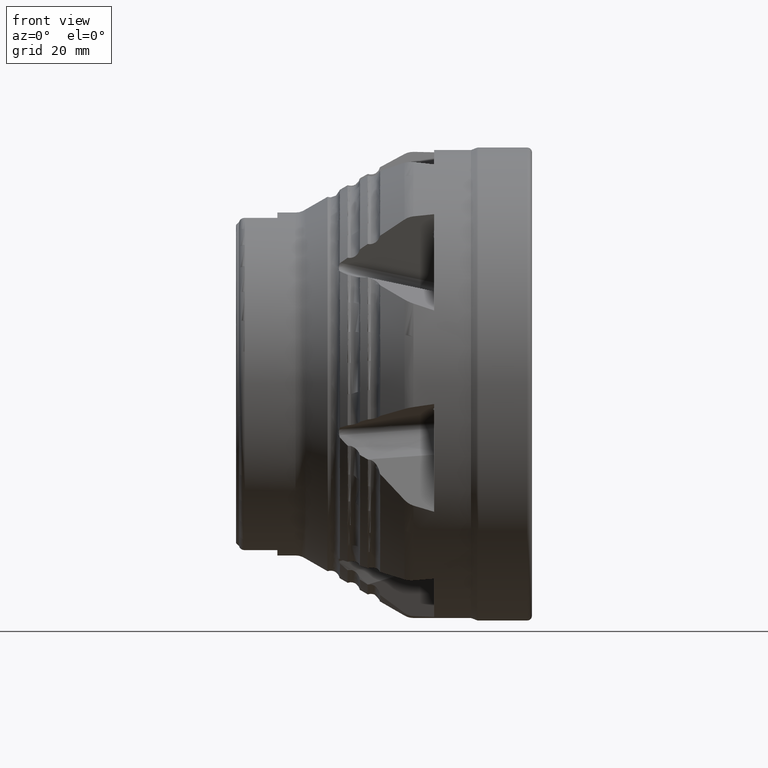
[diagram: clean part render]
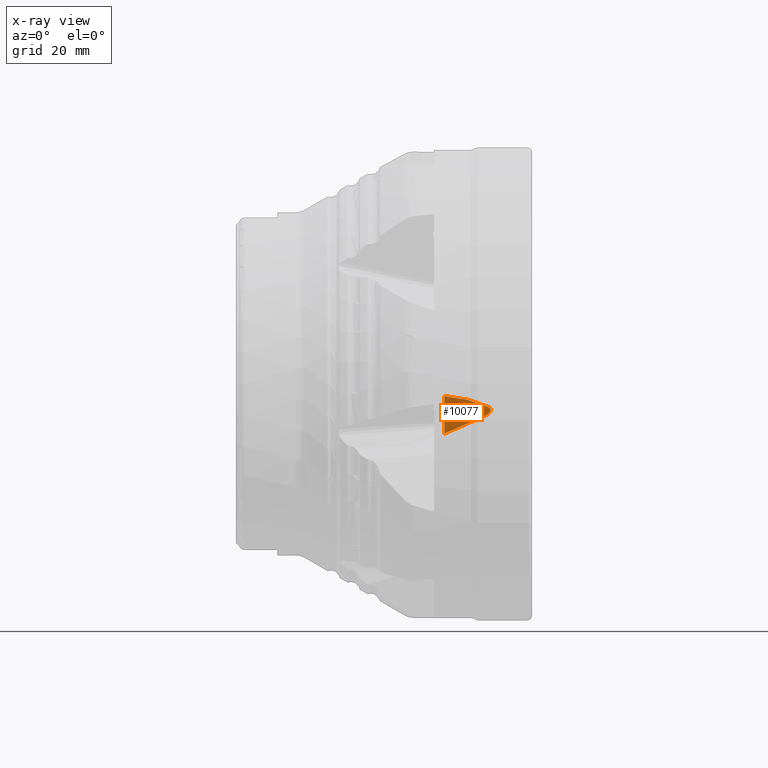
[diagram: x-ray — body ghosted, one internal face saturated and labeled with its STEP entity id]
A machine part, front view, then the same camera in x-ray: the body is ghosted and one INTERNAL B-rep face — a face not visible from any outside direction — is saturated and labeled: STEP entity #10077.
In plain terms, the highlighted conical surface has half-angle 40.665 deg.
Its self-contained STEP definition (entity closure, byte-faithful):
#85 = DIRECTION ( 'NONE',  ( 0.0000000000000000000, 0.0000000000000000000, 1.000000000000000000 ) ) ;
#86 = DIRECTION ( 'NONE',  ( -1.000000000000000000, 0.0000000000000000000, 0.0000000000000000000 ) ) ;
#87 = CARTESIAN_POINT ( 'NONE',  ( -0.05000000000011245400, 0.0000000000000000000, 0.0000000000000000000 ) ) ;
#1807 = ORIENTED_EDGE ( 'NONE', *, *, #9733, .T. ) ;
#1974 = ORIENTED_EDGE ( 'NONE', *, *, #9621, .T. ) ;
#2052 = ORIENTED_EDGE ( 'NONE', *, *, #7809, .F. ) ;
#2473 = VERTEX_POINT ( 'NONE', #2511 ) ;
#2481 = VERTEX_POINT ( 'NONE', #2519 ) ;
#2511 = CARTESIAN_POINT ( 'NONE',  ( -5.591229335723733500, 23.99794201007421200, -3.903414059291797000 ) ) ;
#2519 = CARTESIAN_POINT ( 'NONE',  ( -13.02448214395804400, 30.62812515433550300, -2.086153137206154400 ) ) ;
#3642 = CARTESIAN_POINT ( 'NONE',  ( -13.02448214395804400, 29.52472047791387800, -8.409813677042262000 ) ) ;
#3649 = CARTESIAN_POINT ( 'NONE',  ( -10.74047943243711800, 27.76688278577775600, -7.418553739051987800 ) ) ;
#3650 = CARTESIAN_POINT ( 'NONE',  ( -8.461885389538073500, 26.00461533889089700, -6.422788935507503200 ) ) ;
#3651 = CARTESIAN_POINT ( 'NONE',  ( -6.194392385804454700, 24.23325602773597600, -5.417778106286738700 ) ) ;
#4199 = CARTESIAN_POINT ( 'NONE',  ( -6.194392385804454700, 24.23325602773597600, -5.417778106286738700 ) ) ;
#4210 = CARTESIAN_POINT ( 'NONE',  ( -6.041388960763835100, 24.11373017202748100, -5.349963079373539500 ) ) ;
#4739 = EDGE_LOOP ( 'NONE', ( #2052, #1974, #1807, #6347 ) ) ;
#5179 = CIRCLE ( 'NONE', #5565, 30.69908932495415100 ) ;
#5565 = AXIS2_PLACEMENT_3D ( 'NONE', #8782, #8774, #8765 ) ;
#5926 = AXIS2_PLACEMENT_3D ( 'NONE', #87, #86, #85 ) ;
#6081 = B_SPLINE_CURVE_WITH_KNOTS ( 'NONE', 3,
 ( #3642, #3649, #3650, #3651 ),
 .UNSPECIFIED., .F., .F.,
 ( 4, 4 ),
 ( 2.668826888563095200E-007, 0.009143679335628549300 ),
 .UNSPECIFIED. ) ;
#6347 = ORIENTED_EDGE ( 'NONE', *, *, #9738, .T. ) ;
#6433 = CARTESIAN_POINT ( 'NONE',  ( -13.02448214395804400, 29.52472047791387800, -8.409813677042262000 ) ) ;
#6773 = CARTESIAN_POINT ( 'NONE',  ( -6.194392385804454700, 24.23325602773597600, -5.417778106286738700 ) ) ;
#7219 = VERTEX_POINT ( 'NONE', #6433 ) ;
#7386 = VERTEX_POINT ( 'NONE', #6773 ) ;
#7809 = EDGE_CURVE ( 'NONE', #7219, #2481, #5179, .T. ) ;
#8765 = DIRECTION ( 'NONE',  ( 0.0000000000000000000, 0.0000000000000000000, -1.000000000000000000 ) ) ;
#8774 = DIRECTION ( 'NONE',  ( 1.000000000000000000, -0.0000000000000000000, -0.0000000000000000000 ) ) ;
#8782 = CARTESIAN_POINT ( 'NONE',  ( -13.02448214395804400, 0.0000000000000000000, 0.0000000000000000000 ) ) ;
#9621 = EDGE_CURVE ( 'NONE', #7219, #7386, #6081, .T. ) ;
#9733 = EDGE_CURVE ( 'NONE', #7386, #2473, #11623, .T. ) ;
#9738 = EDGE_CURVE ( 'NONE', #2473, #2481, #11626, .T. ) ;
#10077 = ADVANCED_FACE ( 'NONE', ( #11189 ), #11176, .F. ) ;
#11176 = CONICAL_SURFACE ( 'NONE', #5926, 19.55296481233887800, 0.7097421931620290200 ) ;
#11189 = FACE_OUTER_BOUND ( 'NONE', #4739, .T. ) ;
#11623 = B_SPLINE_CURVE_WITH_KNOTS ( 'NONE', 3,
 ( #4199, #4210, #11719, #11720, #11721, #11722, #11723, #11724, #11725, #11726, #11727, #11728, #11729, #11730, #11731, #11732, #11733, #11734 ),
 .UNSPECIFIED., .F., .F.,
 ( 4, 2, 2, 2, 2, 2, 2, 2, 4 ),
 ( 2.032293519905328300E-017, 0.0006160725659932376900, 0.0009241088489898430400, 0.001232145131986448500, 0.001540181414983053800, 0.001694199556481358400, 0.001848217697979662700, 0.002156253980976275400, 0.002464290263972888700 ),
 .UNSPECIFIED. ) ;
#11626 = B_SPLINE_CURVE_WITH_KNOTS ( 'NONE', 3,
 ( #11743, #11748, #11749, #11750, #11751, #11752, #11753, #11754 ),
 .UNSPECIFIED., .F., .F.,
 ( 4, 2, 2, 4 ),
 ( 8.673617379884035500E-019, 0.002531242445624646500, 0.005062484891249289600, 0.01012496978249857700 ),
 .UNSPECIFIED. ) ;
#11719 = CARTESIAN_POINT ( 'NONE',  ( -5.890260109755153000, 23.99841530643279000, -5.270401366468462400 ) ) ;
#11720 = CARTESIAN_POINT ( 'NONE',  ( -5.671992246094633000, 23.83855358366604800, -5.122617029310584200 ) ) ;
#11721 = CARTESIAN_POINT ( 'NONE',  ( -5.600612286759932200, 23.78745885893227900, -5.068447584266077200 ) ) ;
#11722 = CARTESIAN_POINT ( 'NONE',  ( -5.465204902470084400, 23.69414273403755500, -4.947229516586884500 ) ) ;
#11723 = CARTESIAN_POINT ( 'NONE',  ( -5.400212633604437200, 23.65116269390442500, -4.879825641671496700 ) ) ;
#11724 = CARTESIAN_POINT ( 'NONE',  ( -5.285895062840177500, 23.58302857613267300, -4.722002594774580500 ) ) ;
#11725 = CARTESIAN_POINT ( 'NONE',  ( -5.236806117385235400, 23.55807590505270400, -4.631599916028326500 ) ) ;
#11726 = CARTESIAN_POINT ( 'NONE',  ( -5.202866856493634500, 23.55754332541451400, -4.479983338996032800 ) ) ;
#11727 = CARTESIAN_POINT ( 'NONE',  ( -5.198956049247661900, 23.56394151059744100, -4.428074526079851300 ) ) ;
#11728 = CARTESIAN_POINT ( 'NONE',  ( -5.208012850187206100, 23.59043325100959300, -4.328024931467767000 ) ) ;
#11729 = CARTESIAN_POINT ( 'NONE',  ( -5.220749642796255000, 23.61009989878430900, -4.281113242202554400 ) ) ;
#11730 = CARTESIAN_POINT ( 'NONE',  ( -5.275178623380075900, 23.68030901952544600, -4.154529812087625700 ) ) ;
#11731 = CARTESIAN_POINT ( 'NONE',  ( -5.331370539142701800, 23.74066093014858900, -4.088681761774996200 ) ) ;
#11732 = CARTESIAN_POINT ( 'NONE',  ( -5.453410963850520200, 23.86516429753018200, -3.981526996128274700 ) ) ;
#11733 = CARTESIAN_POINT ( 'NONE',  ( -5.521124918668351500, 23.93114201903658500, -3.938968577222634600 ) ) ;
#11734 = CARTESIAN_POINT ( 'NONE',  ( -5.591229335723733500, 23.99794201007421200, -3.903414059291797000 ) ) ;
#11743 = CARTESIAN_POINT ( 'NONE',  ( -5.591229335723733500, 23.99794201007421200, -3.903414059291797000 ) ) ;
#11748 = CARTESIAN_POINT ( 'NONE',  ( -6.173466707669693000, 24.55273517235165000, -3.608123549073234800 ) ) ;
#11749 = CARTESIAN_POINT ( 'NONE',  ( -6.772466947770372100, 25.10437149695583200, -3.369881657242315100 ) ) ;
#11750 = CARTESIAN_POINT ( 'NONE',  ( -7.988103187938019500, 26.20687373942441300, -2.962723705101542000 ) ) ;
#11751 = CARTESIAN_POINT ( 'NONE',  ( -8.605089471105667800, 26.75761705375418500, -2.794793116350223500 ) ) ;
#11752 = CARTESIAN_POINT ( 'NONE',  ( -10.47364644151605300, 28.41170730797511000, -2.369771263698663900 ) ) ;
#11753 = CARTESIAN_POINT ( 'NONE',  ( -11.74238773820203900, 29.51706149175565800, -2.190237313529292500 ) ) ;
#11754 = CARTESIAN_POINT ( 'NONE',  ( -13.02448214395804400, 30.62812515433550300, -2.086153137206154400 ) ) ;